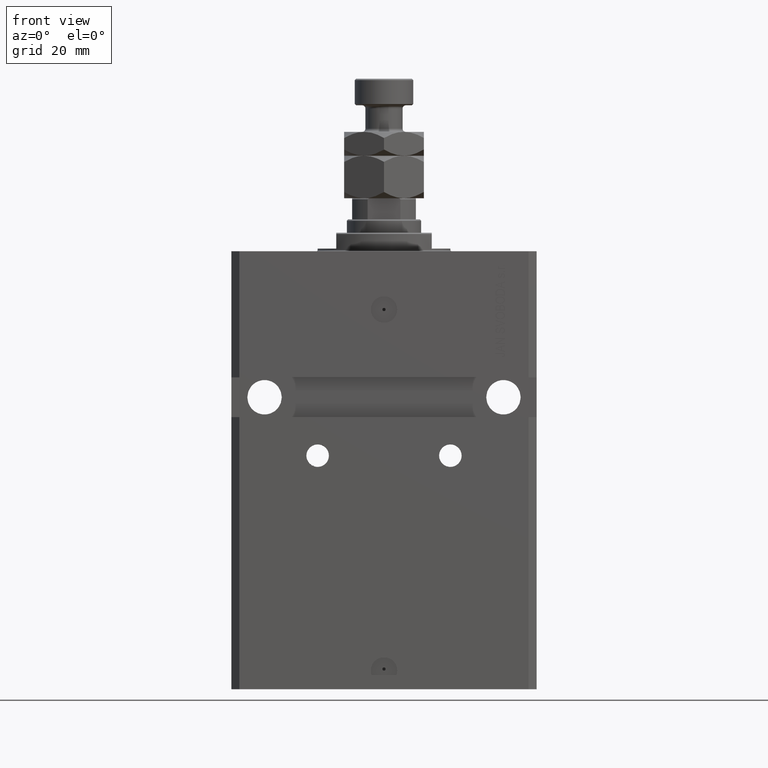
[diagram: clean part render]
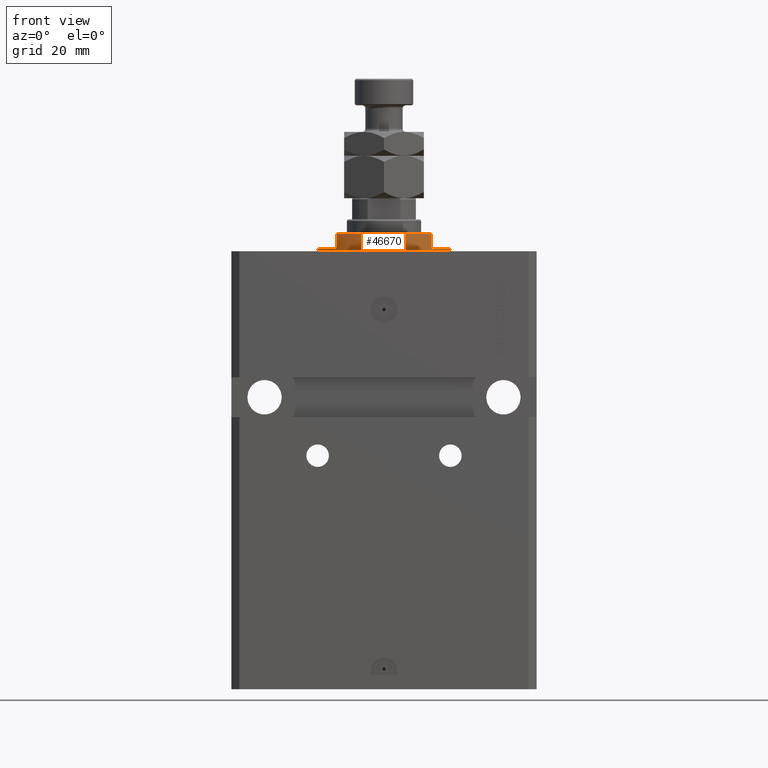
[diagram: same view with one face highlighted and labeled with its STEP entity id]
A machine part, front view. The second image highlights one B-rep face of the part: STEP entity #46670.
In plain terms, the highlighted cylindrical surface (partial cylindrical patch) has radius 25 mm, axis along (0, 0, -1).
Its self-contained STEP definition (entity closure, byte-faithful):
#456 = ORIENTED_EDGE ( 'NONE', *, *, #41613, .F. ) ;
#828 = DIRECTION ( 'NONE',  ( 0.000000000000000000, 0.000000000000000000, -1.000000000000000000 ) ) ;
#1247 = LINE ( 'NONE', #25452, #41166 ) ;
#1397 = CARTESIAN_POINT ( 'NONE',  ( -25.00000000000000000, 3.061616997868383043E-15, -7.000000000000000000 ) ) ;
#2704 = LINE ( 'NONE', #37601, #6960 ) ;
#3749 = VERTEX_POINT ( 'NONE', #5189 ) ;
#4294 = CIRCLE ( 'NONE', #41657, 25.00000000000000000 ) ;
#4794 = ORIENTED_EDGE ( 'NONE', *, *, #37858, .F. ) ;
#5159 = CARTESIAN_POINT ( 'NONE',  ( 18.00000000000000000, -17.34935157289747920, -6.499999999999958256 ) ) ;
#5189 = CARTESIAN_POINT ( 'NONE',  ( 18.00000000000000000, -17.34935157289747920, -1.000000000000000000 ) ) ;
#5324 = CARTESIAN_POINT ( 'NONE',  ( -18.00000000000000000, -17.34935157289747920, -1.000000000000000000 ) ) ;
#5800 = DIRECTION ( 'NONE',  ( -0.000000000000000000, -0.000000000000000000, 1.000000000000000000 ) ) ;
#6457 = VERTEX_POINT ( 'NONE', #5159 ) ;
#6960 = VECTOR ( 'NONE', #18593, 1000.000000000000000 ) ;
#7012 = EDGE_CURVE ( 'NONE', #42628, #40205, #31377, .T. ) ;
#8618 = DIRECTION ( 'NONE',  ( -1.000000000000000000, 0.000000000000000000, 0.000000000000000000 ) ) ;
#9045 = DIRECTION ( 'NONE',  ( -0.000000000000000000, -0.000000000000000000, 1.000000000000000000 ) ) ;
#9195 = EDGE_CURVE ( 'NONE', #22418, #47890, #30434, .T. ) ;
#13021 = CIRCLE ( 'NONE', #22167, 25.00000000000000000 ) ;
#13054 = DIRECTION ( 'NONE',  ( 0.000000000000000000, 0.000000000000000000, -1.000000000000000000 ) ) ;
#14331 = ORIENTED_EDGE ( 'NONE', *, *, #28785, .T. ) ;
#15956 = VERTEX_POINT ( 'NONE', #41907 ) ;
#17108 = CIRCLE ( 'NONE', #37072, 25.00000000000000000 ) ;
#18367 = CARTESIAN_POINT ( 'NONE',  ( 0.000000000000000000, 0.000000000000000000, -7.000000000000000000 ) ) ;
#18593 = DIRECTION ( 'NONE',  ( 0.000000000000000000, 0.000000000000000000, -1.000000000000000000 ) ) ;
#20622 = CARTESIAN_POINT ( 'NONE',  ( 0.000000000000000000, 0.000000000000000000, -6.499999999999958256 ) ) ;
#20716 = VERTEX_POINT ( 'NONE', #29914 ) ;
#22167 = AXIS2_PLACEMENT_3D ( 'NONE', #27387, #828, #8618 ) ;
#22418 = VERTEX_POINT ( 'NONE', #39910 ) ;
#24500 = VECTOR ( 'NONE', #13054, 1000.000000000000000 ) ;
#24532 = DIRECTION ( 'NONE',  ( 0.000000000000000000, 0.000000000000000000, 1.000000000000000000 ) ) ;
#24551 = CARTESIAN_POINT ( 'NONE',  ( -25.00000000000000000, 3.061616997868383043E-15, -0.4999999999999995559 ) ) ;
#25452 = CARTESIAN_POINT ( 'NONE',  ( 25.00000000000000000, 0.000000000000000000, -7.000000000000000000 ) ) ;
#26988 = AXIS2_PLACEMENT_3D ( 'NONE', #18367, #38914, #30610 ) ;
#27012 = DIRECTION ( 'NONE',  ( -1.000000000000000000, 0.000000000000000000, 0.000000000000000000 ) ) ;
#27387 = CARTESIAN_POINT ( 'NONE',  ( 0.000000000000000000, 0.000000000000000000, -1.000000000000000000 ) ) ;
#28785 = EDGE_CURVE ( 'NONE', #40205, #6457, #4294, .T. ) ;
#29342 = EDGE_LOOP ( 'NONE', ( #34134, #456, #34269, #14331, #4794, #46621, #33429, #37304 ) ) ;
#29914 = CARTESIAN_POINT ( 'NONE',  ( 25.00000000000000000, 0.000000000000000000, -1.000000000000000000 ) ) ;
#30434 = CIRCLE ( 'NONE', #35421, 25.00000000000000000 ) ;
#30610 = DIRECTION ( 'NONE',  ( 1.000000000000000000, 0.000000000000000000, 0.000000000000000000 ) ) ;
#31175 = DIRECTION ( 'NONE',  ( 0.000000000000000000, 0.000000000000000000, -1.000000000000000000 ) ) ;
#31355 = CARTESIAN_POINT ( 'NONE',  ( -18.00000000000000000, -17.34935157289747920, -6.499999999999956479 ) ) ;
#31377 = LINE ( 'NONE', #46954, #24500 ) ;
#33429 = ORIENTED_EDGE ( 'NONE', *, *, #51327, .T. ) ;
#33685 = VECTOR ( 'NONE', #5800, 1000.000000000000000 ) ;
#34134 = ORIENTED_EDGE ( 'NONE', *, *, #41210, .F. ) ;
#34269 = ORIENTED_EDGE ( 'NONE', *, *, #7012, .T. ) ;
#34397 = DIRECTION ( 'NONE',  ( -0.000000000000000000, -0.000000000000000000, -1.000000000000000000 ) ) ;
#34504 = FACE_OUTER_BOUND ( 'NONE', #29342, .T. ) ;
#35421 = AXIS2_PLACEMENT_3D ( 'NONE', #41938, #34397, #49736 ) ;
#37072 = AXIS2_PLACEMENT_3D ( 'NONE', #43644, #31175, #27012 ) ;
#37304 = ORIENTED_EDGE ( 'NONE', *, *, #9195, .T. ) ;
#37601 = CARTESIAN_POINT ( 'NONE',  ( 18.00000000000000000, -17.34935157289747920, -7.000000000000000000 ) ) ;
#37858 = EDGE_CURVE ( 'NONE', #3749, #6457, #2704, .T. ) ;
#38914 = DIRECTION ( 'NONE',  ( -0.000000000000000000, -0.000000000000000000, 1.000000000000000000 ) ) ;
#39910 = CARTESIAN_POINT ( 'NONE',  ( 25.00000000000000000, 0.000000000000000000, -0.4999999999999995559 ) ) ;
#40205 = VERTEX_POINT ( 'NONE', #31355 ) ;
#40384 = DIRECTION ( 'NONE',  ( -1.000000000000000000, 0.000000000000000000, 0.000000000000000000 ) ) ;
#41166 = VECTOR ( 'NONE', #9045, 1000.000000000000000 ) ;
#41210 = EDGE_CURVE ( 'NONE', #15956, #47890, #45096, .T. ) ;
#41613 = EDGE_CURVE ( 'NONE', #42628, #15956, #17108, .T. ) ;
#41657 = AXIS2_PLACEMENT_3D ( 'NONE', #20622, #24532, #40384 ) ;
#41907 = CARTESIAN_POINT ( 'NONE',  ( -25.00000000000000000, 3.061616997868383043E-15, -1.000000000000000000 ) ) ;
#41938 = CARTESIAN_POINT ( 'NONE',  ( 0.000000000000000000, 0.000000000000000000, -0.4999999999999995559 ) ) ;
#42628 = VERTEX_POINT ( 'NONE', #5324 ) ;
#43644 = CARTESIAN_POINT ( 'NONE',  ( 0.000000000000000000, 0.000000000000000000, -1.000000000000000000 ) ) ;
#43949 = EDGE_CURVE ( 'NONE', #20716, #3749, #13021, .T. ) ;
#45096 = LINE ( 'NONE', #1397, #33685 ) ;
#46621 = ORIENTED_EDGE ( 'NONE', *, *, #43949, .F. ) ;
#46670 = ADVANCED_FACE ( 'NONE', ( #34504 ), #50355, .T. ) ;
#46954 = CARTESIAN_POINT ( 'NONE',  ( -18.00000000000000000, -17.34935157289747920, -7.000000000000000000 ) ) ;
#47890 = VERTEX_POINT ( 'NONE', #24551 ) ;
#49736 = DIRECTION ( 'NONE',  ( 1.000000000000000000, 0.000000000000000000, 0.000000000000000000 ) ) ;
#50355 = CYLINDRICAL_SURFACE ( 'NONE', #26988, 25.00000000000000000 ) ;
#51327 = EDGE_CURVE ( 'NONE', #20716, #22418, #1247, .T. ) ;